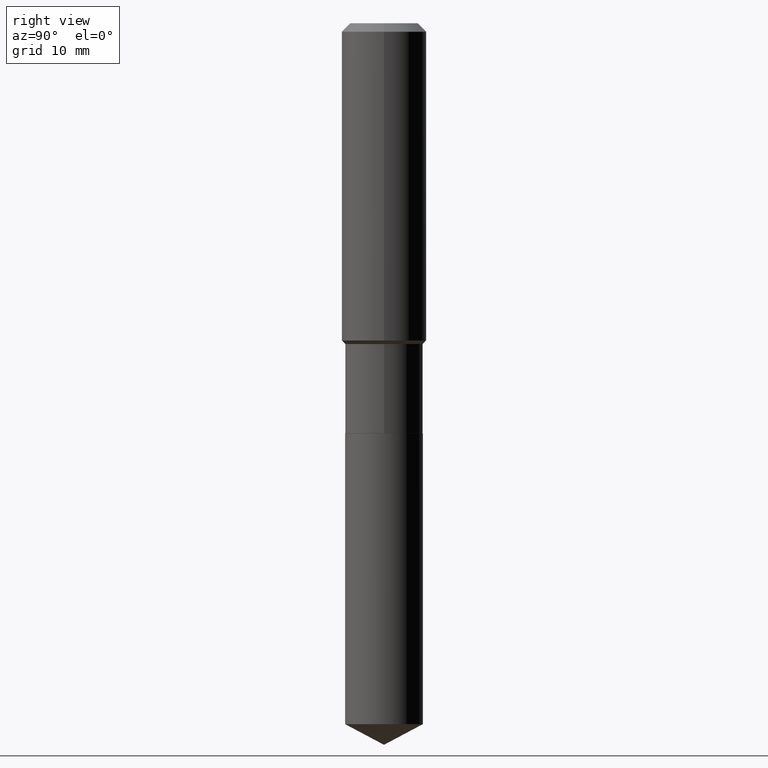
[diagram: clean part render]
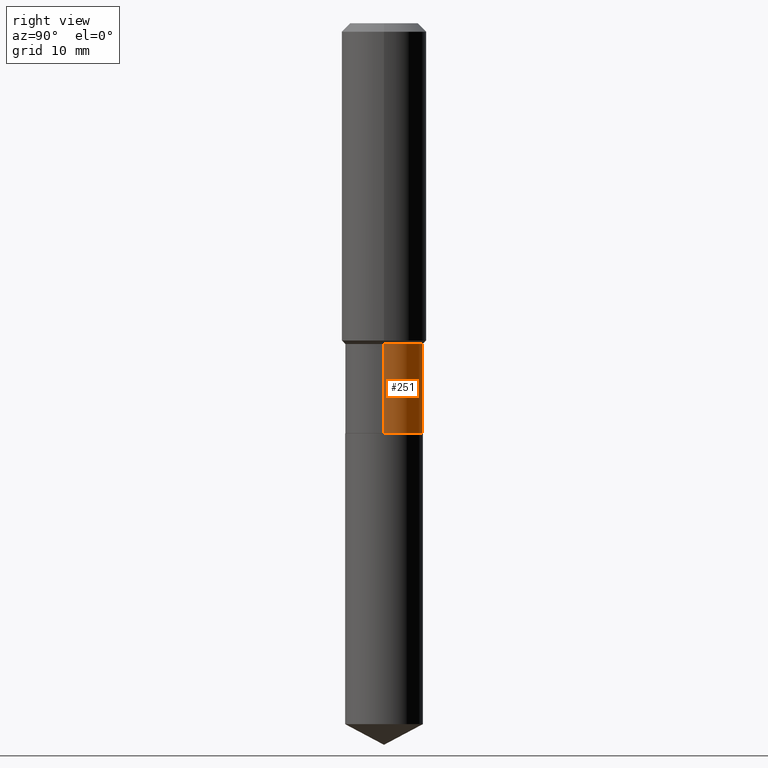
[diagram: same view with one face highlighted and labeled with its STEP entity id]
A machine part, right view. The second image highlights one B-rep face of the part: STEP entity #251.
In plain terms, the highlighted cylindrical surface (partial cylindrical patch) has radius 5.5004 mm, axis along (-0, 0, 1).
Its self-contained STEP definition (entity closure, byte-faithful):
#20 = VERTEX_POINT ( 'NONE', #115 ) ;
#29 = LINE ( 'NONE', #150, #60 ) ;
#43 = CIRCLE ( 'NONE', #227, 0.2165500000000000203 ) ;
#57 = CARTESIAN_POINT ( 'NONE',  ( 0.2165500000000000203, -9.482863316297978150E-15, -2.282900000000000151 ) ) ;
#58 = VERTEX_POINT ( 'NONE', #57 ) ;
#60 = VECTOR ( 'NONE', #230, 39.37007874015748143 ) ;
#70 = CARTESIAN_POINT ( 'NONE',  ( 0.2165499999999999647, -1.512160567852960823E-15, 1.055936080798609895E-29 ) ) ;
#73 = DIRECTION ( 'NONE',  ( 1.000000000000000000, -6.982962677686264344E-15, 0.000000000000000000 ) ) ;
#76 = DIRECTION ( 'NONE',  ( 1.000000000000000000, -6.982962677686266711E-15, 4.876176775795936353E-29 ) ) ;
#83 = EDGE_CURVE ( 'NONE', #58, #154, #101, .T. ) ;
#100 = EDGE_LOOP ( 'NONE', ( #213, #321, #181, #211 ) ) ;
#101 = LINE ( 'NONE', #70, #248 ) ;
#109 = VERTEX_POINT ( 'NONE', #359 ) ;
#115 = CARTESIAN_POINT ( 'NONE',  ( -0.2165500000000000203, -5.563341897052346134E-15, -2.282900000000000151 ) ) ;
#143 = CARTESIAN_POINT ( 'NONE',  ( 0.000000000000000000, 0.000000000000000000, 0.000000000000000000 ) ) ;
#146 = EDGE_CURVE ( 'NONE', #154, #109, #444, .T. ) ;
#150 = CARTESIAN_POINT ( 'NONE',  ( -0.2165499999999999647, 1.538680294288496702E-15, -1.065195393794699783E-29 ) ) ;
#154 = VERTEX_POINT ( 'NONE', #484 ) ;
#160 = AXIS2_PLACEMENT_3D ( 'NONE', #143, #188, #76 ) ;
#181 = ORIENTED_EDGE ( 'NONE', *, *, #146, .F. ) ;
#188 = DIRECTION ( 'NONE',  ( -2.445468806185136597E-29, 3.491481338843145583E-15, 1.000000000000000000 ) ) ;
#194 = AXIS2_PLACEMENT_3D ( 'NONE', #364, #214, #324 ) ;
#211 = ORIENTED_EDGE ( 'NONE', *, *, #83, .F. ) ;
#213 = ORIENTED_EDGE ( 'NONE', *, *, #391, .T. ) ;
#214 = DIRECTION ( 'NONE',  ( -2.445468806185136597E-29, 3.491481338843145583E-15, 1.000000000000000000 ) ) ;
#227 = AXIS2_PLACEMENT_3D ( 'NONE', #418, #268, #73 ) ;
#230 = DIRECTION ( 'NONE',  ( -2.445468806185136877E-29, 3.491481338843145188E-15, 1.000000000000000000 ) ) ;
#248 = VECTOR ( 'NONE', #399, 39.37007874015748143 ) ;
#251 = ADVANCED_FACE ( 'NONE', ( #333 ), #341, .T. ) ;
#268 = DIRECTION ( 'NONE',  ( -2.445468806185136597E-29, 3.491481338843145583E-15, 1.000000000000000000 ) ) ;
#321 = ORIENTED_EDGE ( 'NONE', *, *, #397, .T. ) ;
#324 = DIRECTION ( 'NONE',  ( 1.000000000000000000, -6.982962677686266711E-15, 0.000000000000000000 ) ) ;
#333 = FACE_OUTER_BOUND ( 'NONE', #100, .T. ) ;
#341 = CYLINDRICAL_SURFACE ( 'NONE', #160, 0.2165499999999999647 ) ;
#359 = CARTESIAN_POINT ( 'NONE',  ( -0.2165499999999999370, -5.563341897052346134E-15, -1.785299999999999887 ) ) ;
#364 = CARTESIAN_POINT ( 'NONE',  ( 4.365895459682324685E-29, -6.233341634236667556E-15, -1.785299999999999887 ) ) ;
#391 = EDGE_CURVE ( 'NONE', #58, #20, #43, .T. ) ;
#397 = EDGE_CURVE ( 'NONE', #20, #109, #29, .T. ) ;
#399 = DIRECTION ( 'NONE',  ( -2.445468806185136877E-29, 3.491481338843145188E-15, 1.000000000000000000 ) ) ;
#418 = CARTESIAN_POINT ( 'NONE',  ( 5.582760737640048882E-29, -7.970702748445017327E-15, -2.282900000000000151 ) ) ;
#444 = CIRCLE ( 'NONE', #194, 0.2165499999999999370 ) ;
#484 = CARTESIAN_POINT ( 'NONE',  ( 0.2165499999999999370, -7.745502202089628379E-15, -1.785299999999999887 ) ) ;